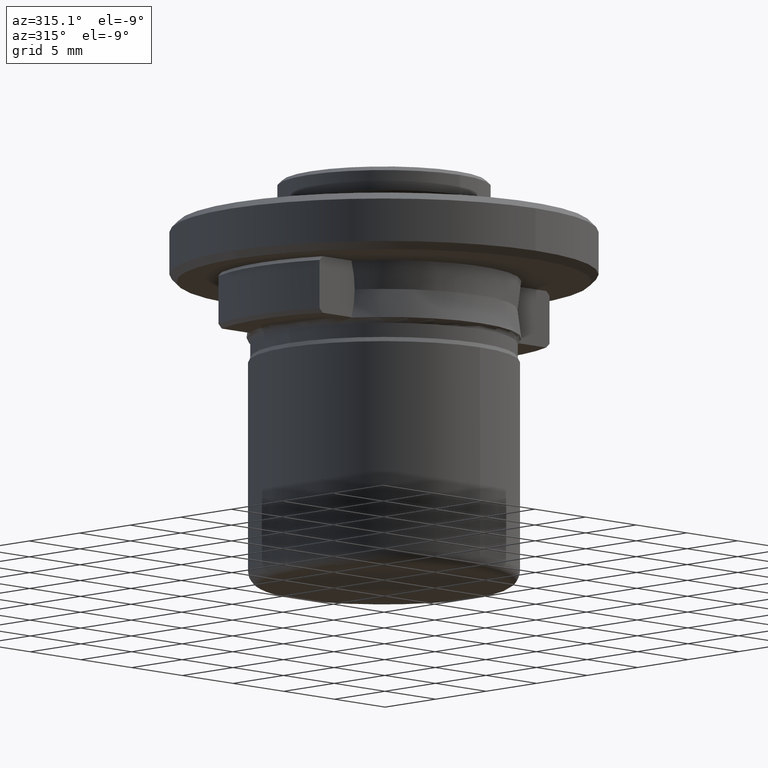
[diagram: clean part render]
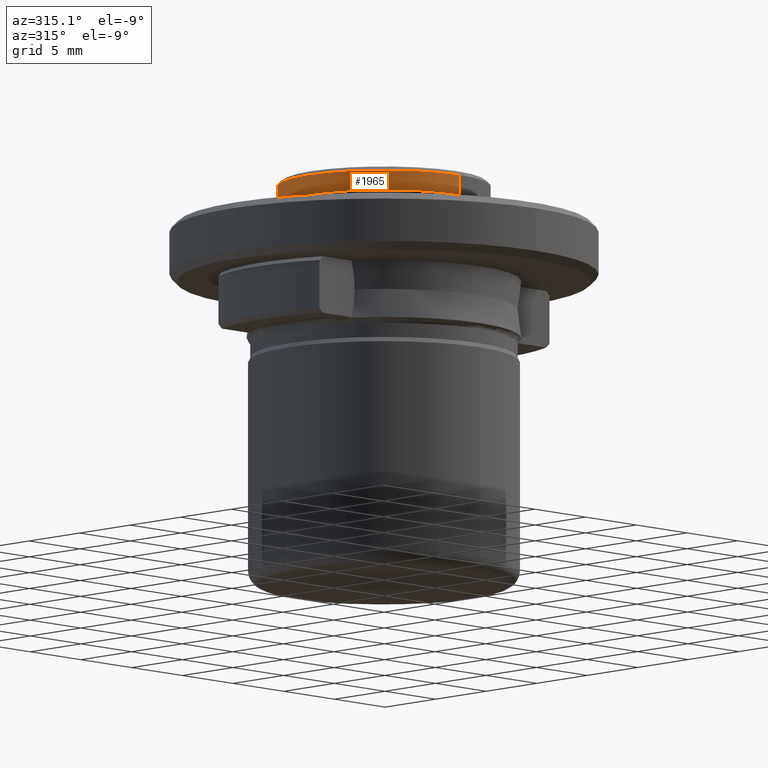
[diagram: same view with one face highlighted and labeled with its STEP entity id]
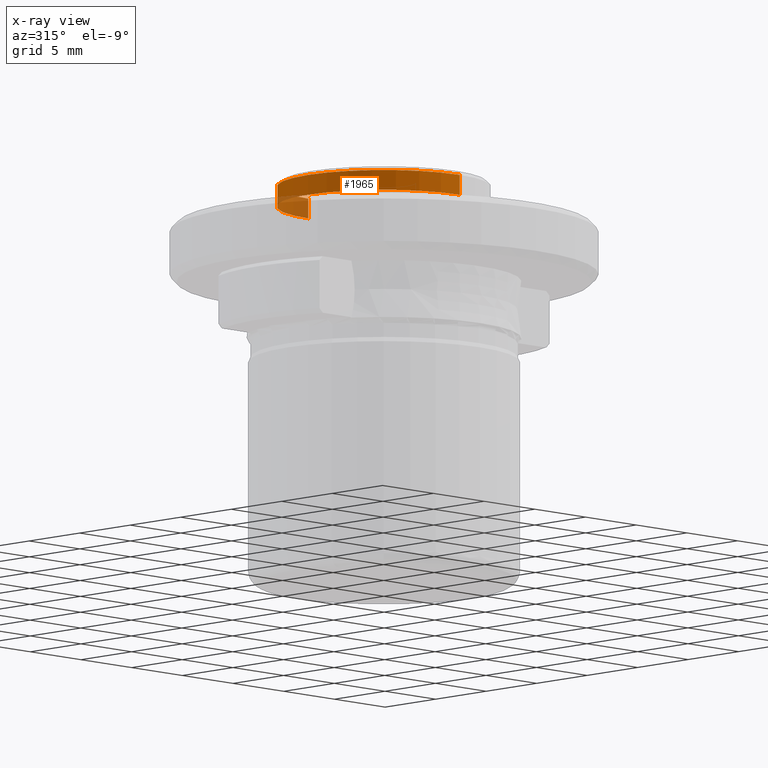
[diagram: x-ray of the same camera — body ghosted, the highlighted face saturated]
A machine part, auxiliary view. The second image highlights one B-rep face of the part: STEP entity #1965.
The next image is the same camera in x-ray: the body ghosted, the highlighted face saturated — about 14% of this face is hidden behind the body in this view.
In plain terms, the highlighted cylindrical surface (partial cylindrical patch) has radius 7.5 mm, axis along (0, -0, -1).
Its self-contained STEP definition (entity closure, byte-faithful):
#84 = CARTESIAN_POINT ( 'NONE',  ( 0.0000000000000000000, 0.0000000000000000000, 15.45000000000000100 ) ) ;
#91 = CARTESIAN_POINT ( 'NONE',  ( 9.184850993605147900E-016, -7.500000000000000000, 15.45000000000000100 ) ) ;
#98 = DIRECTION ( 'NONE',  ( 0.0000000000000000000, -1.156482317317871700E-016, -1.000000000000000000 ) ) ;
#113 = CARTESIAN_POINT ( 'NONE',  ( 0.0000000000000000000, 7.500000000000000000, 15.45000000000000100 ) ) ;
#193 = CARTESIAN_POINT ( 'NONE',  ( 0.0000000000000000000, 0.0000000000000000000, 15.45000000000000100 ) ) ;
#251 = DIRECTION ( 'NONE',  ( -1.000000000000000000, 0.0000000000000000000, 0.0000000000000000000 ) ) ;
#292 = EDGE_CURVE ( 'NONE', #552, #398, #1417, .T. ) ;
#301 = CIRCLE ( 'NONE', #2109, 7.500000000000000000 ) ;
#317 = AXIS2_PLACEMENT_3D ( 'NONE', #1527, #518, #1700 ) ;
#337 = CARTESIAN_POINT ( 'NONE',  ( 0.0000000000000000000, 7.500000000000000000, 14.05000000000000800 ) ) ;
#364 = DIRECTION ( 'NONE',  ( -1.000000000000000000, 0.0000000000000000000, 0.0000000000000000000 ) ) ;
#378 = VECTOR ( 'NONE', #2006, 1000.000000000000000 ) ;
#398 = VERTEX_POINT ( 'NONE', #1893 ) ;
#427 = LINE ( 'NONE', #1491, #378 ) ;
#515 = EDGE_CURVE ( 'NONE', #1269, #1670, #688, .T. ) ;
#518 = DIRECTION ( 'NONE',  ( 0.0000000000000000000, 0.0000000000000000000, 1.000000000000000000 ) ) ;
#546 = CARTESIAN_POINT ( 'NONE',  ( 0.0000000000000000000, 0.0000000000000000000, 15.45000000000000100 ) ) ;
#552 = VERTEX_POINT ( 'NONE', #91 ) ;
#586 = CYLINDRICAL_SURFACE ( 'NONE', #1166, 7.500000000000000000 ) ;
#622 = CARTESIAN_POINT ( 'NONE',  ( -7.500000000000005300, 9.184850993605155800E-016, 14.05000000000000800 ) ) ;
#658 = DIRECTION ( 'NONE',  ( 0.0000000000000000000, 0.0000000000000000000, 1.000000000000000000 ) ) ;
#688 = CIRCLE ( 'NONE', #1755, 7.500000000000000000 ) ;
#760 = CARTESIAN_POINT ( 'NONE',  ( 9.184850993605147900E-016, -7.500000000000000000, 15.45000000000000300 ) ) ;
#772 = ORIENTED_EDGE ( 'NONE', *, *, #292, .F. ) ;
#862 = EDGE_CURVE ( 'NONE', #1558, #1317, #2012, .T. ) ;
#864 = AXIS2_PLACEMENT_3D ( 'NONE', #1668, #658, #1840 ) ;
#898 = CIRCLE ( 'NONE', #864, 7.500000000000000000 ) ;
#976 = VECTOR ( 'NONE', #98, 1000.000000000000000 ) ;
#1086 = FACE_OUTER_BOUND ( 'NONE', #1363, .T. ) ;
#1166 = AXIS2_PLACEMENT_3D ( 'NONE', #546, #1888, #1727 ) ;
#1257 = DIRECTION ( 'NONE',  ( -0.0000000000000000000, -0.0000000000000000000, 1.000000000000000000 ) ) ;
#1269 = VERTEX_POINT ( 'NONE', #113 ) ;
#1317 = VERTEX_POINT ( 'NONE', #622 ) ;
#1363 = EDGE_LOOP ( 'NONE', ( #772, #1499, #2027, #1543, #1381, #1473 ) ) ;
#1368 = DIRECTION ( 'NONE',  ( -0.0000000000000000000, -0.0000000000000000000, 1.000000000000000000 ) ) ;
#1381 = ORIENTED_EDGE ( 'NONE', *, *, #862, .T. ) ;
#1417 = LINE ( 'NONE', #760, #976 ) ;
#1473 = ORIENTED_EDGE ( 'NONE', *, *, #1768, .T. ) ;
#1491 = CARTESIAN_POINT ( 'NONE',  ( 0.0000000000000000000, 7.500000000000000000, 15.45000000000000100 ) ) ;
#1499 = ORIENTED_EDGE ( 'NONE', *, *, #1875, .F. ) ;
#1502 = EDGE_CURVE ( 'NONE', #1269, #1558, #427, .T. ) ;
#1527 = CARTESIAN_POINT ( 'NONE',  ( 0.0000000000000000000, 0.0000000000000000000, 14.05000000000000800 ) ) ;
#1543 = ORIENTED_EDGE ( 'NONE', *, *, #1502, .T. ) ;
#1558 = VERTEX_POINT ( 'NONE', #337 ) ;
#1668 = CARTESIAN_POINT ( 'NONE',  ( 0.0000000000000000000, 0.0000000000000000000, 14.05000000000000800 ) ) ;
#1670 = VERTEX_POINT ( 'NONE', #1987 ) ;
#1700 = DIRECTION ( 'NONE',  ( 1.000000000000000000, 0.0000000000000000000, -6.938893903907228400E-016 ) ) ;
#1727 = DIRECTION ( 'NONE',  ( 0.0000000000000000000, 1.000000000000000000, -2.312964634635743000E-016 ) ) ;
#1755 = AXIS2_PLACEMENT_3D ( 'NONE', #84, #1257, #251 ) ;
#1768 = EDGE_CURVE ( 'NONE', #1317, #398, #898, .T. ) ;
#1840 = DIRECTION ( 'NONE',  ( 1.000000000000000000, 0.0000000000000000000, -6.938893903907228400E-016 ) ) ;
#1875 = EDGE_CURVE ( 'NONE', #1670, #552, #301, .T. ) ;
#1888 = DIRECTION ( 'NONE',  ( 0.0000000000000000000, -1.156482317317871700E-016, -1.000000000000000000 ) ) ;
#1893 = CARTESIAN_POINT ( 'NONE',  ( 9.184850993605147900E-016, -7.500000000000000000, 14.05000000000000800 ) ) ;
#1965 = ADVANCED_FACE ( 'NONE', ( #1086 ), #586, .T. ) ;
#1987 = CARTESIAN_POINT ( 'NONE',  ( -7.500000000000000000, 0.0000000000000000000, 15.45000000000000100 ) ) ;
#2006 = DIRECTION ( 'NONE',  ( 0.0000000000000000000, -1.156482317317871700E-016, -1.000000000000000000 ) ) ;
#2012 = CIRCLE ( 'NONE', #317, 7.500000000000000000 ) ;
#2027 = ORIENTED_EDGE ( 'NONE', *, *, #515, .F. ) ;
#2109 = AXIS2_PLACEMENT_3D ( 'NONE', #193, #1368, #364 ) ;